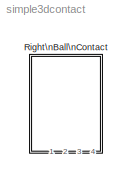
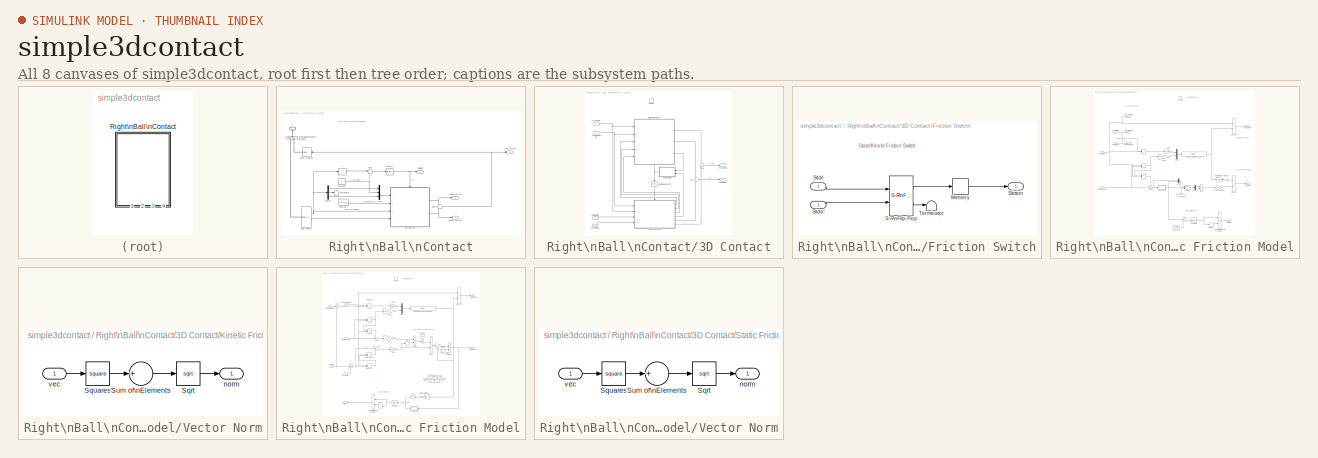
[diagram: thumbnail index - all 8 canvases of the model, root first then tree order]
MODEL simple3dcontact
KIND model
BLOCK [SubSystem] Right\nBall\nContact
  Ports = [0, 4, 0, 0, 0, 1]
  RequestExecContextInheritance = off
  SID = 1
BLOCK [SubSystem] Right\nBall\nContact/3D Contact
  Ports = [4, 2, 1]
  RequestExecContextInheritance = off
  SID = 2
BLOCK [EnablePort] Right\nBall\nContact/3D Contact/Contact!
  Ports = []
  SID = 7
  StatesWhenEnabling = reset
BLOCK [Outport] Right\nBall\nContact/3D Contact/FnVec [N N N]
  AttributesFormatString = when disabled: %<OutputWhenDisabled>
  IconDisplay = Port number
  InitialOutput = [0 0 0]
  OutputWhenDisabled = reset
  SID = 116
BLOCK [SubSystem] Right\nBall\nContact/3D Contact/Friction Switch
  Ports = [2, 1]
  RequestExecContextInheritance = off
  SID = 8
BLOCK [Memory] Right\nBall\nContact/3D Contact/Friction Switch/Memory
  SID = 11
BLOCK [Reference] Right\nBall\nContact/3D Contact/Friction Switch/S-R\nFlip-Flop  REF=simulink_extras/Flip Flops/S-R\nFlip-Flop
  Ports = [2, 2]
  SID = 12
  SourceBlock = simulink_extras/Flip Flops/S-R\nFlip-Flop
  SourceType = SRFlipFlop
  initial_condition = 0
BLOCK [Inport] Right\nBall\nContact/3D Contact/Friction Switch/Slide!
  IconDisplay = Port number
  SID = 9
BLOCK [Inport] Right\nBall\nContact/3D Contact/Friction Switch/Stick!
  IconDisplay = Port number
  Port = 2
  SID = 10
BLOCK [Outport] Right\nBall\nContact/3D Contact/Friction Switch/Stiction
  IconDisplay = Port number
  SID = 14
BLOCK [Terminator] Right\nBall\nContact/3D Contact/Friction Switch/Terminator
  SID = 13
BLOCK [Outport] Right\nBall\nContact/3D Contact/FtVec [N N N]
  AttributesFormatString = when disabled: %<OutputWhenDisabled>
  IconDisplay = Port number
  InitialOutput = [0 0 0]
  OutputWhenDisabled = reset
  Port = 2
  SID = 117
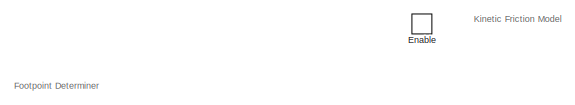
[diagram: Right\nBall\nContact/3D Contact/Kinetic Friction Model - part 1/2, top center region]
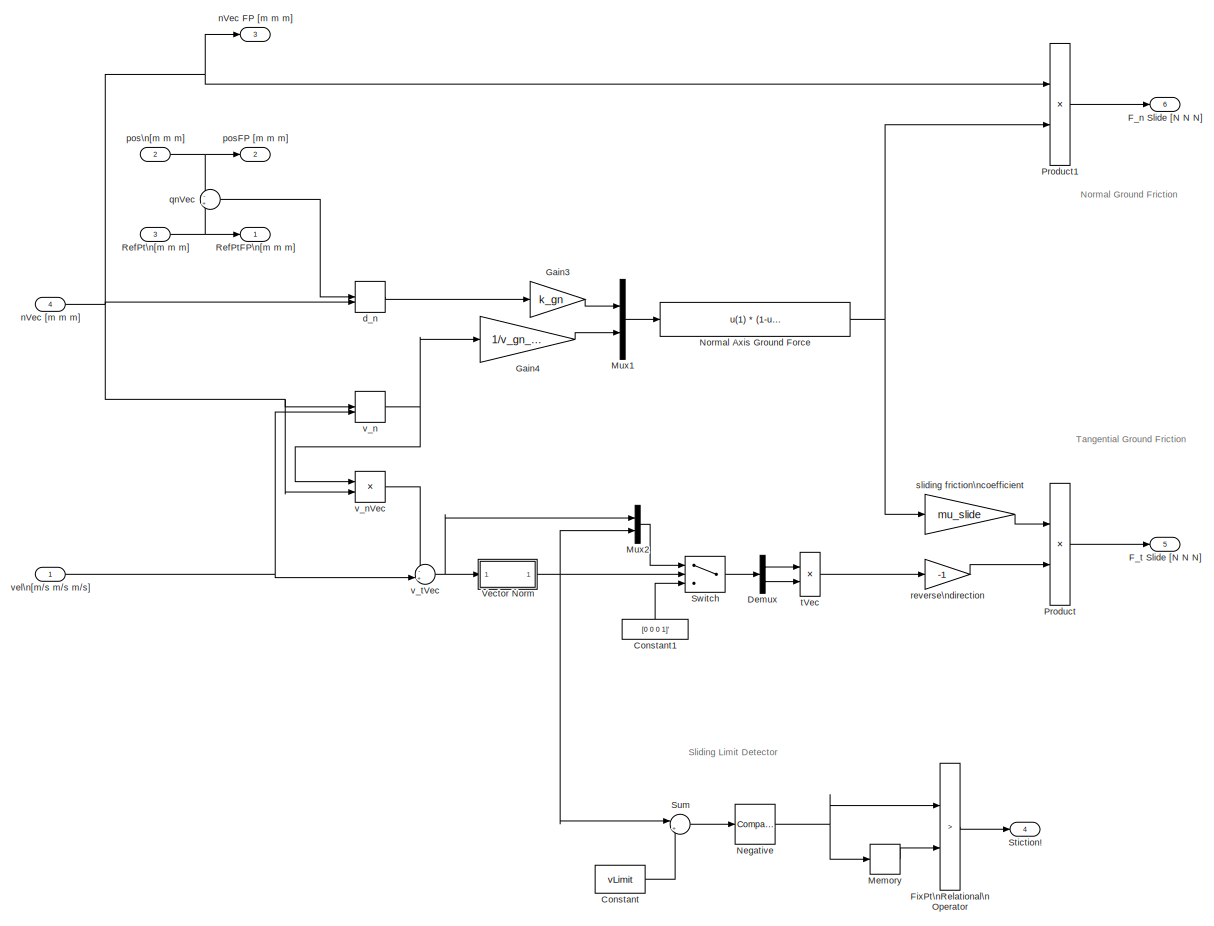
[diagram: Right\nBall\nContact/3D Contact/Kinetic Friction Model - part 2/2, most of the canvas]
BLOCK [SubSystem] Right\nBall\nContact/3D Contact/Kinetic Friction Model
  Ports = [4, 6, 1]
  RequestExecContextInheritance = off
  SID = 16
BLOCK [Constant] Right\nBall\nContact/3D Contact/Kinetic Friction Model/Constant
  SID = 22
  Value = vLimit
BLOCK [Constant] Right\nBall\nContact/3D Contact/Kinetic Friction Model/Constant1
  SID = 23
  Value = [0 0 0 1]'
BLOCK [Demux] Right\nBall\nContact/3D Contact/Kinetic Friction Model/Demux
  DisplayOption = bar
  Outputs = [3 1]
  Ports = [1, 2]
  SID = 24
BLOCK [EnablePort] Right\nBall\nContact/3D Contact/Kinetic Friction Model/Enable
  Ports = []
  SID = 21
  StatesWhenEnabling = reset
  ZeroCross = off
BLOCK [Outport] Right\nBall\nContact/3D Contact/Kinetic Friction Model/F_n Slide [N N N]
  AttributesFormatString = initial = '%<InitialOutput>'\\nwhen disabled = '%<OutputWhenDisabled>'
  IconDisplay = Port number
  InitialOutput = [0 0 0]
  OutputWhenDisabled = reset
  Port = 6
  SID = 56
BLOCK [Outport] Right\nBall\nContact/3D Contact/Kinetic Friction Model/F_t Slide [N N N]
  AttributesFormatString = initial = '%<InitialOutput>'\\nwhen disabled = '%<OutputWhenDisabled>'
  IconDisplay = Port number
  InitialOutput = [0 0 0]
  OutputWhenDisabled = reset
  Port = 5
  SID = 55
BLOCK [RelationalOperator] Right\nBall\nContact/3D Contact/Kinetic Friction Model/FixPt\nRelational\nOperator
  InputSameDT = off
  Operator = >
  OutDataTypeStr = boolean
  Ports = [2, 1]
  SID = 25
  ZeroCross = off
BLOCK [Gain] Right\nBall\nContact/3D Contact/Kinetic Friction Model/Gain3
  Gain = k_gn
  OutDataTypeStr = Inherit: Inherit via internal rule
  ParamDataTypeStr = Inherit: Inherit via internal rule
  SID = 26
  SaturateOnIntegerOverflow = off
BLOCK [Gain] Right\nBall\nContact/3D Contact/Kinetic Friction Model/Gain4
  Gain = 1/v_gn_max
  OutDataTypeStr = Inherit: Inherit via internal rule
  ParamDataTypeStr = Inherit: Inherit via internal rule
  SID = 27
  SaturateOnIntegerOverflow = off
BLOCK [Memory] Right\nBall\nContact/3D Contact/Kinetic Friction Model/Memory
  SID = 28
BLOCK [Mux] Right\nBall\nContact/3D Contact/Kinetic Friction Model/Mux1
  DisplayOption = bar
  Inputs = 2
  Ports = [2, 1]
  SID = 29
BLOCK [Mux] Right\nBall\nContact/3D Contact/Kinetic Friction Model/Mux2
  DisplayOption = bar
  Inputs = 2
  Ports = [2, 1]
  SID = 30
BLOCK [Reference] Right\nBall\nContact/3D Contact/Kinetic Friction Model/Negative  REF=simulink/Logic and Bit\nOperations/Compare\nTo Zero
  OutDataTypeStr = boolean
  Ports = [1, 1]
  SID = 31
  SourceBlock = simulink/Logic and Bit\nOperations/Compare\nTo Zero
  SourceType = Compare To Zero
  ZeroCross = on
  relop = <
BLOCK [Fcn] Right\nBall\nContact/3D Contact/Kinetic Friction Model/Normal Axis Ground Force
  Expr = u(1)  *  (1-u(2)) * (u(2)<1)
  SID = 32
BLOCK [Product] Right\nBall\nContact/3D Contact/Kinetic Friction Model/Product
  InputSameDT = off
  OutDataTypeStr = Inherit: Inherit via internal rule
  Ports = [2, 1]
  SID = 33
  SaturateOnIntegerOverflow = off
BLOCK [Product] Right\nBall\nContact/3D Contact/Kinetic Friction Model/Product1
  InputSameDT = off
  OutDataTypeStr = Inherit: Inherit via internal rule
  Ports = [2, 1]
  SID = 34
  SaturateOnIntegerOverflow = off
BLOCK [Outport] Right\nBall\nContact/3D Contact/Kinetic Friction Model/RefPtFP\n[m m m]
  AttributesFormatString = initial = '%<InitialOutput>'\\nwhen disabled = '%<OutputWhenDisabled>'
  IconDisplay = Port number
  InitialOutput = [0 0 0]
  SID = 51
BLOCK [Inport] Right\nBall\nContact/3D Contact/Kinetic Friction Model/RefPt\n[m m m]
  IconDisplay = Port number
  Port = 3
  SID = 19
BLOCK [Outport] Right\nBall\nContact/3D Contact/Kinetic Friction Model/Stiction!
  AttributesFormatString = initial = '%<InitialOutput>'\\nwhen disabled = '%<OutputWhenDisabled>'
  IconDisplay = Port number
  InitialOutput = 0
  OutputWhenDisabled = reset
  Port = 4
  SID = 54
BLOCK [Sum] Right\nBall\nContact/3D Contact/Kinetic Friction Model/Sum
  IconShape = round
  InputSameDT = off
  Inputs = |+-
  OutDataTypeStr = Inherit: Inherit via internal rule
  Ports = [2, 1]
  SID = 35
  SaturateOnIntegerOverflow = off
BLOCK [Switch] Right\nBall\nContact/3D Contact/Kinetic Friction Model/Switch
  AttributesFormatString = >%<Threshold>?
  Criteria = u2 > Threshold
  InputSameDT = off
  SID = 36
  SaturateOnIntegerOverflow = off
  Threshold = 0.9*vLimit
BLOCK [SubSystem] Right\nBall\nContact/3D Contact/Kinetic Friction Model/Vector Norm
  Ports = [1, 1]
  RequestExecContextInheritance = off
  SID = 37
BLOCK [Sqrt] Right\nBall\nContact/3D Contact/Kinetic Friction Model/Vector Norm/Sqrt
  AlgorithmType = Newton-Raphson
  OutputSignalType = real
  SID = 39
BLOCK [Math] Right\nBall\nContact/3D Contact/Kinetic Friction Model/Vector Norm/Squares
  Operator = square
  OutputSignalType = real
  Ports = [1, 1]
  SID = 40
BLOCK [Sum] Right\nBall\nContact/3D Contact/Kinetic Friction Model/Vector Norm/Sum of\nElements
  IconShape = round
  InputSameDT = off
  Inputs = +
  OutDataTypeStr = Inherit: Inherit via internal rule
  Ports = [1, 1]
  SID = 41
  SaturateOnIntegerOverflow = off
BLOCK [Outport] Right\nBall\nContact/3D Contact/Kinetic Friction Model/Vector Norm/norm
  IconDisplay = Port number
  SID = 42
BLOCK [Inport] Right\nBall\nContact/3D Contact/Kinetic Friction Model/Vector Norm/vec
  IconDisplay = Port number
  SID = 38
BLOCK [DotProduct] Right\nBall\nContact/3D Contact/Kinetic Friction Model/d_n
  OutDataTypeStr = Inherit: Inherit via internal rule
  SID = 43
BLOCK [Outport] Right\nBall\nContact/3D Contact/Kinetic Friction Model/nVec FP [m m m]
  AttributesFormatString = initial = '%<InitialOutput>'\\nwhen disabled = '%<OutputWhenDisabled>'
  IconDisplay = Port number
  InitialOutput = 0
  Port = 3
  SID = 53
BLOCK [Inport] Right\nBall\nContact/3D Contact/Kinetic Friction Model/nVec [m m m]
  IconDisplay = Port number
  Port = 4
  SID = 20
BLOCK [Outport] Right\nBall\nContact/3D Contact/Kinetic Friction Model/posFP [m m m]
  AttributesFormatString = initial = '%<InitialOutput>'\\nwhen disabled = '%<OutputWhenDisabled>'
  IconDisplay = Port number
  InitialOutput = [0 0 0]
  Port = 2
  SID = 52
BLOCK [Inport] Right\nBall\nContact/3D Contact/Kinetic Friction Model/pos\n[m m m]
  IconDisplay = Port number
  Port = 2
  SID = 18
BLOCK [Sum] Right\nBall\nContact/3D Contact/Kinetic Friction Model/qnVec
  IconShape = round
  InputSameDT = off
  Inputs = -+
  OutDataTypeStr = Inherit: Inherit via internal rule
  Ports = [2, 1]
  SID = 44
  SaturateOnIntegerOverflow = off
BLOCK [Gain] Right\nBall\nContact/3D Contact/Kinetic Friction Model/reverse\ndirection
  Gain = -1
  OutDataTypeStr = Inherit: Inherit via internal rule
  ParamDataTypeStr = Inherit: Inherit via internal rule
  SID = 45
  SaturateOnIntegerOverflow = off
BLOCK [Gain] Right\nBall\nContact/3D Contact/Kinetic Friction Model/sliding friction\ncoefficient
  Gain = mu_slide
  OutDataTypeStr = Inherit: Inherit via internal rule
  ParamDataTypeStr = Inherit: Inherit via internal rule
  SID = 46
  SaturateOnIntegerOverflow = off
BLOCK [Product] Right\nBall\nContact/3D Contact/Kinetic Friction Model/tVec
  InputSameDT = off
  Inputs = */
  OutDataTypeStr = Inherit: Inherit via internal rule
  Ports = [2, 1]
  SID = 47
  SaturateOnIntegerOverflow = off
BLOCK [DotProduct] Right\nBall\nContact/3D Contact/Kinetic Friction Model/v_n
  OutDataTypeStr = Inherit: Inherit via internal rule
  SID = 48
BLOCK [Product] Right\nBall\nContact/3D Contact/Kinetic Friction Model/v_nVec
  InputSameDT = off
  OutDataTypeStr = Inherit: Inherit via internal rule
  Ports = [2, 1]
  SID = 49
  SaturateOnIntegerOverflow = off
BLOCK [Sum] Right\nBall\nContact/3D Contact/Kinetic Friction Model/v_tVec
  IconShape = round
  InputSameDT = off
  Inputs = -+|
  OutDataTypeStr = Inherit: Inherit via internal rule
  Ports = [2, 1]
  SID = 50
  SaturateOnIntegerOverflow = off
BLOCK [Inport] Right\nBall\nContact/3D Contact/Kinetic Friction Model/vel\n[m//s m//s m//s]
  IconDisplay = Port number
  SID = 17
BLOCK [Logic] Right\nBall\nContact/3D Contact/Logical\nOperator
  AllPortsSameDT = off
  Operator = NOT
  OutDataTypeStr = boolean
  Ports = [1, 1]
  SID = 62
BLOCK [Inport] Right\nBall\nContact/3D Contact/RefPt\n[m m m]
  IconDisplay = Port number
  SID = 3
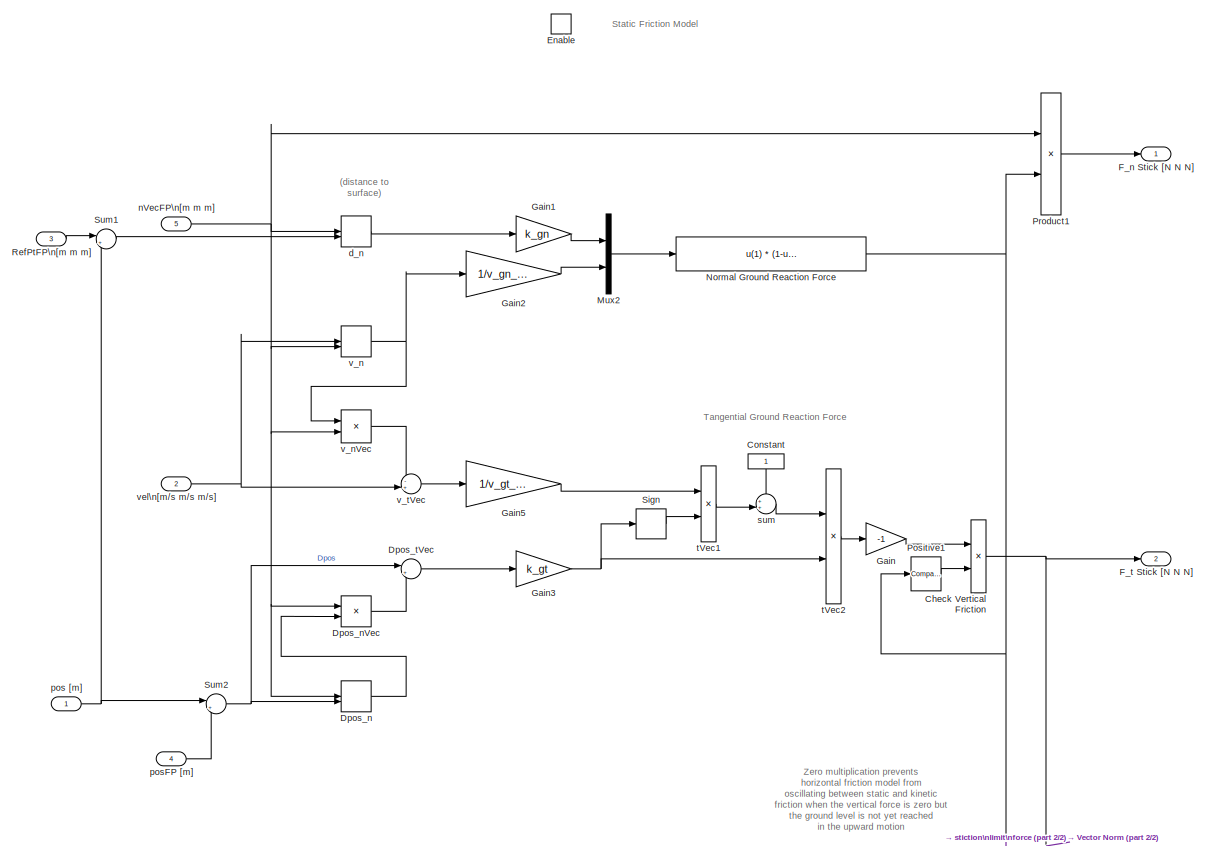
[diagram: Right\nBall\nContact/3D Contact/Static Friction Model - part 1/2, most of the canvas]
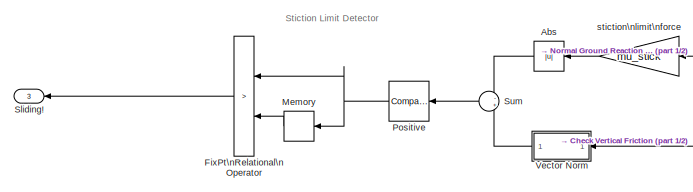
[diagram: Right\nBall\nContact/3D Contact/Static Friction Model - part 2/2, bottom center region]
BLOCK [SubSystem] Right\nBall\nContact/3D Contact/Static Friction Model
  Ports = [5, 3, 1]
  RequestExecContextInheritance = off
  SID = 63
BLOCK [Abs] Right\nBall\nContact/3D Contact/Static Friction Model/Abs
  SID = 70
  SaturateOnIntegerOverflow = off
BLOCK [Product] Right\nBall\nContact/3D Contact/Static Friction Model/Check Vertical Friction
  InputSameDT = off
  OutDataTypeStr = Inherit: Inherit via internal rule
  Ports = [2, 1]
  SID = 71
  SaturateOnIntegerOverflow = off
BLOCK [Constant] Right\nBall\nContact/3D Contact/Static Friction Model/Constant
  SID = 72
BLOCK [DotProduct] Right\nBall\nContact/3D Contact/Static Friction Model/Dpos_n
  OutDataTypeStr = Inherit: Inherit via internal rule
  SID = 73
BLOCK [Product] Right\nBall\nContact/3D Contact/Static Friction Model/Dpos_nVec
  InputSameDT = off
  OutDataTypeStr = Inherit: Inherit via internal rule
  Ports = [2, 1]
  SID = 74
  SaturateOnIntegerOverflow = off
BLOCK [Sum] Right\nBall\nContact/3D Contact/Static Friction Model/Dpos_tVec
  IconShape = round
  InputSameDT = off
  Inputs = |+-
  OutDataTypeStr = Inherit: Inherit via internal rule
  Ports = [2, 1]
  SID = 75
  SaturateOnIntegerOverflow = off
BLOCK [EnablePort] Right\nBall\nContact/3D Contact/Static Friction Model/Enable
  Ports = []
  SID = 69
  StatesWhenEnabling = reset
  ZeroCross = off
BLOCK [Outport] Right\nBall\nContact/3D Contact/Static Friction Model/F_n Stick [N N N]
  AttributesFormatString = initial = '%<InitialOutput>'\\nwhen disabled = '%<OutputWhenDisabled>'
  IconDisplay = Port number
  InitialOutput = [0 0 0]
  OutputWhenDisabled = reset
  SID = 106
BLOCK [Outport] Right\nBall\nContact/3D Contact/Static Friction Model/F_t Stick [N N N]
  AttributesFormatString = when disabled: %<OutputWhenDisabled>\\ninitial: %<InitialOutput>
  IconDisplay = Port number
  InitialOutput = [0 0 0]
  OutputWhenDisabled = reset
  Port = 2
  SID = 107
BLOCK [RelationalOperator] Right\nBall\nContact/3D Contact/Static Friction Model/FixPt\nRelational\nOperator
  InputSameDT = off
  Operator = >
  OutDataTypeStr = boolean
  Ports = [2, 1]
  SID = 76
  ZeroCross = off
BLOCK [Gain] Right\nBall\nContact/3D Contact/Static Friction Model/Gain
  Gain = -1
  OutDataTypeStr = Inherit: Inherit via internal rule
  ParamDataTypeStr = Inherit: Inherit via internal rule
  SID = 77
  SaturateOnIntegerOverflow = off
BLOCK [Gain] Right\nBall\nContact/3D Contact/Static Friction Model/Gain1
  Gain = k_gn
  OutDataTypeStr = Inherit: Inherit via internal rule
  ParamDataTypeStr = Inherit: Inherit via internal rule
  SID = 78
  SaturateOnIntegerOverflow = off
BLOCK [Gain] Right\nBall\nContact/3D Contact/Static Friction Model/Gain2
  Gain = 1/v_gn_max
  OutDataTypeStr = Inherit: Inherit via internal rule
  ParamDataTypeStr = Inherit: Inherit via internal rule
  SID = 79
  SaturateOnIntegerOverflow = off
BLOCK [Gain] Right\nBall\nContact/3D Contact/Static Friction Model/Gain3
  Gain = k_gt
  OutDataTypeStr = Inherit: Inherit via internal rule
  ParamDataTypeStr = Inherit: Inherit via internal rule
  SID = 80
  SaturateOnIntegerOverflow = off
BLOCK [Gain] Right\nBall\nContact/3D Contact/Static Friction Model/Gain5
  Gain = 1/v_gt_max
  OutDataTypeStr = Inherit: Inherit via internal rule
  ParamDataTypeStr = Inherit: Inherit via internal rule
  SID = 81
  SaturateOnIntegerOverflow = off
BLOCK [Memory] Right\nBall\nContact/3D Contact/Static Friction Model/Memory
  SID = 82
BLOCK [Mux] Right\nBall\nContact/3D Contact/Static Friction Model/Mux2
  DisplayOption = bar
  Inputs = 2
  Ports = [2, 1]
  SID = 83
BLOCK [Fcn] Right\nBall\nContact/3D Contact/Static Friction Model/Normal Ground Reaction Force
  Expr = u(1)  *  (1-u(2)) * (u(2)<1)
  SID = 84
BLOCK [Reference] Right\nBall\nContact/3D Contact/Static Friction Model/Positive  REF=simulink/Logic and Bit\nOperations/Compare\nTo Zero
  OutDataTypeStr = boolean
  Ports = [1, 1]
  SID = 85
  SourceBlock = simulink/Logic and Bit\nOperations/Compare\nTo Zero
  SourceType = Compare To Zero
  ZeroCross = on
  relop = >
BLOCK [Reference] Right\nBall\nContact/3D Contact/Static Friction Model/Positive1  REF=simulink/Logic and Bit\nOperations/Compare\nTo Zero
  OutDataTypeStr = boolean
  Ports = [1, 1]
  SID = 86
  SourceBlock = simulink/Logic and Bit\nOperations/Compare\nTo Zero
  SourceType = Compare To Zero
  ZeroCross = on
  relop = >
BLOCK [Product] Right\nBall\nContact/3D Contact/Static Friction Model/Product1
  InputSameDT = off
  OutDataTypeStr = Inherit: Inherit via internal rule
  Ports = [2, 1]
  SID = 87
  SaturateOnIntegerOverflow = off
BLOCK [Inport] Right\nBall\nContact/3D Contact/Static Friction Model/RefPtFP\n[m m m]
  IconDisplay = Port number
  Port = 3
  SID = 66
BLOCK [Signum] Right\nBall\nContact/3D Contact/Static Friction Model/Sign
  SID = 88
  ZeroCross = off
BLOCK [Outport] Right\nBall\nContact/3D Contact/Static Friction Model/Sliding!
  AttributesFormatString = when disabled: %<OutputWhenDisabled>\\ninitial: %<InitialOutput>
  IconDisplay = Port number
  InitialOutput = 0
  OutputWhenDisabled = reset
  Port = 3
  SID = 108
BLOCK [Sum] Right\nBall\nContact/3D Contact/Static Friction Model/Sum
  IconShape = round
  InputSameDT = off
  Inputs = -+
  OutDataTypeStr = Inherit: Inherit via internal rule
  Ports = [2, 1]
  SID = 89
  SaturateOnIntegerOverflow = off
BLOCK [Sum] Right\nBall\nContact/3D Contact/Static Friction Model/Sum1
  IconShape = round
  InputSameDT = off
  Inputs = |+-
  OutDataTypeStr = Inherit: Inherit via internal rule
  Ports = [2, 1]
  SID = 90
  SaturateOnIntegerOverflow = off
BLOCK [Sum] Right\nBall\nContact/3D Contact/Static Friction Model/Sum2
  IconShape = round
  InputSameDT = off
  Inputs = |+-
  OutDataTypeStr = Inherit: Inherit via internal rule
  Ports = [2, 1]
  SID = 91
  SaturateOnIntegerOverflow = off
BLOCK [SubSystem] Right\nBall\nContact/3D Contact/Static Friction Model/Vector Norm
  Ports = [1, 1]
  RequestExecContextInheritance = off
  SID = 92
BLOCK [Sqrt] Right\nBall\nContact/3D Contact/Static Friction Model/Vector Norm/Sqrt
  AlgorithmType = Newton-Raphson
  OutputSignalType = real
  SID = 94
BLOCK [Math] Right\nBall\nContact/3D Contact/Static Friction Model/Vector Norm/Squares
  Operator = square
  OutputSignalType = real
  Ports = [1, 1]
  SID = 95
BLOCK [Sum] Right\nBall\nContact/3D Contact/Static Friction Model/Vector Norm/Sum of\nElements
  IconShape = round
  InputSameDT = off
  Inputs = +
  OutDataTypeStr = Inherit: Inherit via internal rule
  Ports = [1, 1]
  SID = 96
  SaturateOnIntegerOverflow = off
BLOCK [Outport] Right\nBall\nContact/3D Contact/Static Friction Model/Vector Norm/norm
  IconDisplay = Port number
  SID = 97
BLOCK [Inport] Right\nBall\nContact/3D Contact/Static Friction Model/Vector Norm/vec
  IconDisplay = Port number
  SID = 93
BLOCK [DotProduct] Right\nBall\nContact/3D Contact/Static Friction Model/d_n
  OutDataTypeStr = Inherit: Inherit via internal rule
  SID = 98
BLOCK [Inport] Right\nBall\nContact/3D Contact/Static Friction Model/nVecFP\n[m m m]
  IconDisplay = Port number
  Port = 5
  SID = 68
BLOCK [Inport] Right\nBall\nContact/3D Contact/Static Friction Model/pos [m]
  IconDisplay = Port number
  SID = 64
BLOCK [Inport] Right\nBall\nContact/3D Contact/Static Friction Model/posFP [m]
  IconDisplay = Port number
  Port = 4
  SID = 67
BLOCK [Gain] Right\nBall\nContact/3D Contact/Static Friction Model/stiction\nlimit\nforce
  Gain = mu_stick
  OutDataTypeStr = Inherit: Inherit via internal rule
  ParamDataTypeStr = Inherit: Inherit via internal rule
  SID = 99
  SaturateOnIntegerOverflow = off
BLOCK [Sum] Right\nBall\nContact/3D Contact/Static Friction Model/sum
  IconShape = round
  InputSameDT = off
  Inputs = ++|
  OutDataTypeStr = Inherit: Inherit via internal rule
  Ports = [2, 1]
  SID = 100
  SaturateOnIntegerOverflow = off
BLOCK [Product] Right\nBall\nContact/3D Contact/Static Friction Model/tVec1
  InputSameDT = off
  Inputs = **
  OutDataTypeStr = Inherit: Inherit via internal rule
  Ports = [2, 1]
  SID = 101
  SaturateOnIntegerOverflow = off
BLOCK [Product] Right\nBall\nContact/3D Contact/Static Friction Model/tVec2
  InputSameDT = off
  Inputs = **
  OutDataTypeStr = Inherit: Inherit via internal rule
  Ports = [2, 1]
  SID = 102
  SaturateOnIntegerOverflow = off
BLOCK [DotProduct] Right\nBall\nContact/3D Contact/Static Friction Model/v_n
  OutDataTypeStr = Inherit: Inherit via internal rule
  SID = 103
BLOCK [Product] Right\nBall\nContact/3D Contact/Static Friction Model/v_nVec
  InputSameDT = off
  OutDataTypeStr = Inherit: Inherit via internal rule
  Ports = [2, 1]
  SID = 104
  SaturateOnIntegerOverflow = off
BLOCK [Sum] Right\nBall\nContact/3D Contact/Static Friction Model/v_tVec
  IconShape = round
  InputSameDT = off
  Inputs = -+|
  OutDataTypeStr = Inherit: Inherit via internal rule
  Ports = [2, 1]
  SID = 105
  SaturateOnIntegerOverflow = off
BLOCK [Inport] Right\nBall\nContact/3D Contact/Static Friction Model/vel\n[m//s m//s m//s]
  IconDisplay = Port number
  Port = 2
  SID = 65
BLOCK [Sum] Right\nBall\nContact/3D Contact/Sum
  IconShape = round
  InputSameDT = off
  OutDataTypeStr = Inherit: Inherit via internal rule
  Ports = [2, 1]
  SID = 114
  SaturateOnIntegerOverflow = off
BLOCK [Sum] Right\nBall\nContact/3D Contact/Sum1
  IconShape = round
  InputSameDT = off
  OutDataTypeStr = Inherit: Inherit via internal rule
  Ports = [2, 1]
  SID = 115
  SaturateOnIntegerOverflow = off
BLOCK [Inport] Right\nBall\nContact/3D Contact/nVec\n[m m m]
  IconDisplay = Port number
  Port = 2
  SID = 4
BLOCK [Inport] Right\nBall\nContact/3D Contact/pVec\n[m m m]
  IconDisplay = Port number
  Port = 3
  SID = 5
BLOCK [Inport] Right\nBall\nContact/3D Contact/vVec\n[m//s m//s m//s]
  IconDisplay = Port number
  Port = 4
  SID = 6
BLOCK [Reference] Right\nBall\nContact/Body Actuator  REF=mblibv1/Sensors & \nActuators/Body Actuator
  AccelerationUnits = m/s^2
  ActiveIO = off
  ActuationStyle = Force
  Angle = off
  AngleUnits = deg
  ArcAccelerationUnits = deg/s^2
  ArcVelocityUnits = deg/s
  ClassName = BodyActuatorForceTorque
  CoordPosition = on
  CoordPositionUnits = m
  DialogClass = MechanicalActuatorBlock
  Force = on
  ForceUnits = N
  PhysicalDomain = Mechanical
  PortType = blob
  Ports = [1, 0, 0, 0, 0, 0, 1]
  ReferenceFrame = Absolute (World)
  SID = 118
  SourceBlock = mblibv1/Sensors & \nActuators/Body Actuator
  SourceType = Body Actuator
  Torque = off
  TorqueUnits = N*m
  UpdateFromCAD = off
  VelocityUnits = m/s
  Width = 3
BLOCK [Reference] Right\nBall\nContact/Body Sensor  REF=mblibv1/Sensors & \nActuators/Body Sensor
  Acceleration = off
  AccelerationUnits = m/s^2
  ActiveIO = off
  Angle = on
  AngleUnits = deg
  ArcAcceleration = off
  ArcAccelerationUnits = deg/s^2
  ArcVelocity = off
  ArcVelocityUnits = deg/s
  ClassName = BodySensor
  CoordPosition = on
  CoordPositionUnits = m
  DialogClass = MechanicalSensorBlock
  Muxed = off
  OutputVector = [ 3 3 ]
  PhysicalDomain = Mechanical
  PortType = blob
  Ports = [0, 2, 0, 0, 0, 1]
  Pose = off
  Quaternion = on
  QuaternionDDT = off
  QuaternionDT = off
  QuaternionUnits = off
  ReferenceFrame = Absolute (World)
  SID = 119
  SourceBlock = mblibv1/Sensors & \nActuators/Body Sensor
  SourceType = Body Sensor
  UpdateFromCAD = off
  Velocity = on
  VelocityUnits = m/s
  Width = 6
BLOCK [Constant] Right\nBall\nContact/Constant
  SID = 120
  Value = 0
BLOCK [Constant] Right\nBall\nContact/Constant1
  SID = 121
  Value = [0 1 0]
BLOCK [Demux] Right\nBall\nContact/Demux
  DisplayOption = bar
  Outputs = 3
  Ports = [1, 3]
  SID = 122
BLOCK [PMIOPort] Right\nBall\nContact/F
  Port = 1
  SID = 130
  Side = Left
BLOCK [Outport] Right\nBall\nContact/GRF [N N N]
  IconDisplay = Port number
  Port = 2
  SID = 132
BLOCK [Outport] Right\nBall\nContact/GRFn [N N N]
  IconDisplay = Port number
  Port = 4
  SID = 134
BLOCK [Outport] Right\nBall\nContact/GRFt [N N N]
  IconDisplay = Port number
  Port = 3
  SID = 133
BLOCK [Reference] Right\nBall\nContact/Mechanical\nBranching\nBar  REF=mblibv1/Utilities/Mechanical\nBranching\nBar
  ClassName = BranchingBar
  DialogClass = MechanicalBranchingBarBlock
  LConnTagsString = _newl0
  NumSAPorts = 2
  Ports = [0, 0, 0, 0, 0, 1, 2]
  RConnTagsString = SA0|SA1
  SID = 123
  SourceBlock = mblibv1/Utilities/Mechanical\nBranching\nBar
  SourceType = Mechanical Branching Bar
  UpdateFromCAD = off
BLOCK [Mux] Right\nBall\nContact/Mux
  DisplayOption = bar
  Inputs = 3
  Ports = [3, 1]
  SID = 124
BLOCK [Outport] Right\nBall\nContact/RBallCnt
  IconDisplay = Port number
  SID = 131
BLOCK [Sum] Right\nBall\nContact/Sum
  IconShape = round
  InputSameDT = off
  Inputs = |+-
  OutDataTypeStr = Inherit: Inherit via internal rule
  Ports = [2, 1]
  SID = 125
  SaturateOnIntegerOverflow = off
BLOCK [Sum] Right\nBall\nContact/Sum1
  IconShape = round
  InputSameDT = off
  OutDataTypeStr = Inherit: Inherit via internal rule
  Ports = [2, 1]
  SID = 126
  SaturateOnIntegerOverflow = off
BLOCK [Terminator] Right\nBall\nContact/Terminator
  SID = 127
BLOCK [Reference] Right\nBall\nContact/contact?  REF=simulink/Logic and Bit\nOperations/Compare\nTo Zero
  OutDataTypeStr = boolean
  Ports = [1, 1]
  SID = 128
  SourceBlock = simulink/Logic and Bit\nOperations/Compare\nTo Zero
  SourceType = Compare To Zero
  ZeroCross = on
  relop = <=
BLOCK [Selector] Right\nBall\nContact/y
  Indices = 2
  InputPortWidth = 3
  Ports = [1, 1]
  SID = 129
ANNOTATION Right\nBall\nContact: 3D Ground Interaction Model
ANNOTATION Right\nBall\nContact/3D Contact/Friction Switch: Static/Kinetic Friction Switch
ANNOTATION Right\nBall\nContact/3D Contact/Kinetic Friction Model: Footpoint Determiner
ANNOTATION Right\nBall\nContact/3D Contact/Kinetic Friction Model: Kinetic Friction Model
ANNOTATION Right\nBall\nContact/3D Contact/Kinetic Friction Model: Normal Ground Friction
ANNOTATION Right\nBall\nContact/3D Contact/Kinetic Friction Model: Sliding Limit Detector
ANNOTATION Right\nBall\nContact/3D Contact/Kinetic Friction Model: Tangential Ground Friction
ANNOTATION Right\nBall\nContact/3D Contact/Static Friction Model: (distance to\nsurface)
ANNOTATION Right\nBall\nContact/3D Contact/Static Friction Model: Static Friction Model
ANNOTATION Right\nBall\nContact/3D Contact/Static Friction Model: Stiction Limit Detector
ANNOTATION Right\nBall\nContact/3D Contact/Static Friction Model: Tangential Ground Reaction Force
ANNOTATION Right\nBall\nContact/3D Contact/Static Friction Model: Zero multiplication prevents\nhorizontal friction model from\noscillating between static and kinetic\nfriction when the vertical force is zero but \nthe ground level is not yet reached \nin the upward motion
LINE Right\nBall\nContact/3D Contact/Friction Switch/Memory:1 -> Right\nBall\nContact/3D Contact/Friction Switch/Stiction:1
LINE Right\nBall\nContact/3D Contact/Friction Switch/S-R\nFlip-Flop:1 -> Right\nBall\nContact/3D Contact/Friction Switch/Memory:1
LINE Right\nBall\nContact/3D Contact/Friction Switch/S-R\nFlip-Flop:2 -> Right\nBall\nContact/3D Contact/Friction Switch/Terminator:1
LINE Right\nBall\nContact/3D Contact/Friction Switch/Slide!:1 -> Right\nBall\nContact/3D Contact/Friction Switch/S-R\nFlip-Flop:2
LINE Right\nBall\nContact/3D Contact/Friction Switch/Stick!:1 -> Right\nBall\nContact/3D Contact/Friction Switch/S-R\nFlip-Flop:1
NET Right\nBall\nContact/3D Contact/Friction Switch:1 -> Right\nBall\nContact/3D Contact/Logical\nOperator:1, Right\nBall\nContact/3D Contact/Static Friction Model:enable
LINE Right\nBall\nContact/3D Contact/Kinetic Friction Model/Constant1:1 -> Right\nBall\nContact/3D Contact/Kinetic Friction Model/Switch:3
LINE Right\nBall\nContact/3D Contact/Kinetic Friction Model/Constant:1 -> Right\nBall\nContact/3D Contact/Kinetic Friction Model/Sum:2
LINE Right\nBall\nContact/3D Contact/Kinetic Friction Model/Demux:1 -> Right\nBall\nContact/3D Contact/Kinetic Friction Model/tVec:1
LINE Right\nBall\nContact/3D Contact/Kinetic Friction Model/Demux:2 -> Right\nBall\nContact/3D Contact/Kinetic Friction Model/tVec:2
LINE Right\nBall\nContact/3D Contact/Kinetic Friction Model/FixPt\nRelational\nOperator:1 -> Right\nBall\nContact/3D Contact/Kinetic Friction Model/Stiction!:1
LINE Right\nBall\nContact/3D Contact/Kinetic Friction Model/Gain3:1 -> Right\nBall\nContact/3D Contact/Kinetic Friction Model/Mux1:1
LINE Right\nBall\nContact/3D Contact/Kinetic Friction Model/Gain4:1 -> Right\nBall\nContact/3D Contact/Kinetic Friction Model/Mux1:2
LINE Right\nBall\nContact/3D Contact/Kinetic Friction Model/Memory:1 -> Right\nBall\nContact/3D Contact/Kinetic Friction Model/FixPt\nRelational\nOperator:2
LINE Right\nBall\nContact/3D Contact/Kinetic Friction Model/Mux1:1 -> Right\nBall\nContact/3D Contact/Kinetic Friction Model/Normal Axis Ground Force:1
LINE Right\nBall\nContact/3D Contact/Kinetic Friction Model/Mux2:1 -> Right\nBall\nContact/3D Contact/Kinetic Friction Model/Switch:1
NET Right\nBall\nContact/3D Contact/Kinetic Friction Model/Negative:1 -> Right\nBall\nContact/3D Contact/Kinetic Friction Model/FixPt\nRelational\nOperator:1, Right\nBall\nContact/3D Contact/Kinetic Friction Model/Memory:1
NET Right\nBall\nContact/3D Contact/Kinetic Friction Model/Normal Axis Ground Force:1 -> Right\nBall\nContact/3D Contact/Kinetic Friction Model/Product1:2, Right\nBall\nContact/3D Contact/Kinetic Friction Model/sliding friction\ncoefficient:1
LINE Right\nBall\nContact/3D Contact/Kinetic Friction Model/Product1:1 -> Right\nBall\nContact/3D Contact/Kinetic Friction Model/F_n Slide [N N N]:1
LINE Right\nBall\nContact/3D Contact/Kinetic Friction Model/Product:1 -> Right\nBall\nContact/3D Contact/Kinetic Friction Model/F_t Slide [N N N]:1
NET Right\nBall\nContact/3D Contact/Kinetic Friction Model/RefPt\n[m m m]:1 -> Right\nBall\nContact/3D Contact/Kinetic Friction Model/RefPtFP\n[m m m]:1, Right\nBall\nContact/3D Contact/Kinetic Friction Model/qnVec:2
LINE Right\nBall\nContact/3D Contact/Kinetic Friction Model/Sum:1 -> Right\nBall\nContact/3D Contact/Kinetic Friction Model/Negative:1
LINE Right\nBall\nContact/3D Contact/Kinetic Friction Model/Switch:1 -> Right\nBall\nContact/3D Contact/Kinetic Friction Model/Demux:1
LINE Right\nBall\nContact/3D Contact/Kinetic Friction Model/Vector Norm/Sqrt:1 -> Right\nBall\nContact/3D Contact/Kinetic Friction Model/Vector Norm/norm:1
LINE Right\nBall\nContact/3D Contact/Kinetic Friction Model/Vector Norm/Squares:1 -> Right\nBall\nContact/3D Contact/Kinetic Friction Model/Vector Norm/Sum of\nElements:1
LINE Right\nBall\nContact/3D Contact/Kinetic Friction Model/Vector Norm/Sum of\nElements:1 -> Right\nBall\nContact/3D Contact/Kinetic Friction Model/Vector Norm/Sqrt:1
LINE Right\nBall\nContact/3D Contact/Kinetic Friction Model/Vector Norm/vec:1 -> Right\nBall\nContact/3D Contact/Kinetic Friction Model/Vector Norm/Squares:1
NET Right\nBall\nContact/3D Contact/Kinetic Friction Model/Vector Norm:1 -> Right\nBall\nContact/3D Contact/Kinetic Friction Model/Mux2:2, Right\nBall\nContact/3D Contact/Kinetic Friction Model/Sum:1, Right\nBall\nContact/3D Contact/Kinetic Friction Model/Switch:2
LINE Right\nBall\nContact/3D Contact/Kinetic Friction Model/d_n:1 -> Right\nBall\nContact/3D Contact/Kinetic Friction Model/Gain3:1
NET Right\nBall\nContact/3D Contact/Kinetic Friction Model/nVec [m m m]:1 -> Right\nBall\nContact/3D Contact/Kinetic Friction Model/Product1:1, Right\nBall\nContact/3D Contact/Kinetic Friction Model/d_n:2, Right\nBall\nContact/3D Contact/Kinetic Friction Model/nVec FP [m m m]:1, Right\nBall\nContact/3D Contact/Kinetic Friction Model/v_n:1, Right\nBall\nContact/3D Contact/Kinetic Friction Model/v_nVec:2
NET Right\nBall\nContact/3D Contact/Kinetic Friction Model/pos\n[m m m]:1 -> Right\nBall\nContact/3D Contact/Kinetic Friction Model/posFP [m m m]:1, Right\nBall\nContact/3D Contact/Kinetic Friction Model/qnVec:1
LINE Right\nBall\nContact/3D Contact/Kinetic Friction Model/qnVec:1 -> Right\nBall\nContact/3D Contact/Kinetic Friction Model/d_n:1
LINE Right\nBall\nContact/3D Contact/Kinetic Friction Model/reverse\ndirection:1 -> Right\nBall\nContact/3D Contact/Kinetic Friction Model/Product:2
LINE Right\nBall\nContact/3D Contact/Kinetic Friction Model/sliding friction\ncoefficient:1 -> Right\nBall\nContact/3D Contact/Kinetic Friction Model/Product:1
LINE Right\nBall\nContact/3D Contact/Kinetic Friction Model/tVec:1 -> Right\nBall\nContact/3D Contact/Kinetic Friction Model/reverse\ndirection:1
NET Right\nBall\nContact/3D Contact/Kinetic Friction Model/v_n:1 -> Right\nBall\nContact/3D Contact/Kinetic Friction Model/Gain4:1, Right\nBall\nContact/3D Contact/Kinetic Friction Model/v_nVec:1
LINE Right\nBall\nContact/3D Contact/Kinetic Friction Model/v_nVec:1 -> Right\nBall\nContact/3D Contact/Kinetic Friction Model/v_tVec:1
NET Right\nBall\nContact/3D Contact/Kinetic Friction Model/v_tVec:1 -> Right\nBall\nContact/3D Contact/Kinetic Friction Model/Mux2:1, Right\nBall\nContact/3D Contact/Kinetic Friction Model/Vector Norm:1
NET Right\nBall\nContact/3D Contact/Kinetic Friction Model/vel\n[m//s m//s m//s]:1 -> Right\nBall\nContact/3D Contact/Kinetic Friction Model/v_n:2, Right\nBall\nContact/3D Contact/Kinetic Friction Model/v_tVec:2
LINE Right\nBall\nContact/3D Contact/Kinetic Friction Model:1 -> Right\nBall\nContact/3D Contact/Static Friction Model:3
LINE Right\nBall\nContact/3D Contact/Kinetic Friction Model:2 -> Right\nBall\nContact/3D Contact/Static Friction Model:4
LINE Right\nBall\nContact/3D Contact/Kinetic Friction Model:3 -> Right\nBall\nContact/3D Contact/Static Friction Model:5
LINE Right\nBall\nContact/3D Contact/Kinetic Friction Model:4 -> Right\nBall\nContact/3D Contact/Friction Switch:2
LINE Right\nBall\nContact/3D Contact/Kinetic Friction Model:5 -> Right\nBall\nContact/3D Contact/Sum:2
LINE Right\nBall\nContact/3D Contact/Kinetic Friction Model:6 -> Right\nBall\nContact/3D Contact/Sum1:2
LINE Right\nBall\nContact/3D Contact/Logical\nOperator:1 -> Right\nBall\nContact/3D Contact/Kinetic Friction Model:enable
LINE Right\nBall\nContact/3D Contact/RefPt\n[m m m]:1 -> Right\nBall\nContact/3D Contact/Kinetic Friction Model:3
LINE Right\nBall\nContact/3D Contact/Static Friction Model/Abs:1 -> Right\nBall\nContact/3D Contact/Static Friction Model/Sum:1
NET Right\nBall\nContact/3D Contact/Static Friction Model/Check Vertical Friction:1 -> Right\nBall\nContact/3D Contact/Static Friction Model/F_t Stick [N N N]:1, Right\nBall\nContact/3D Contact/Static Friction Model/Vector Norm:1
LINE Right\nBall\nContact/3D Contact/Static Friction Model/Constant:1 -> Right\nBall\nContact/3D Contact/Static Friction Model/sum:1
LINE Right\nBall\nContact/3D Contact/Static Friction Model/Dpos_n:1 -> Right\nBall\nContact/3D Contact/Static Friction Model/Dpos_nVec:2
LINE Right\nBall\nContact/3D Contact/Static Friction Model/Dpos_nVec:1 -> Right\nBall\nContact/3D Contact/Static Friction Model/Dpos_tVec:2
LINE Right\nBall\nContact/3D Contact/Static Friction Model/Dpos_tVec:1 -> Right\nBall\nContact/3D Contact/Static Friction Model/Gain3:1
LINE Right\nBall\nContact/3D Contact/Static Friction Model/FixPt\nRelational\nOperator:1 -> Right\nBall\nContact/3D Contact/Static Friction Model/Sliding!:1
LINE Right\nBall\nContact/3D Contact/Static Friction Model/Gain1:1 -> Right\nBall\nContact/3D Contact/Static Friction Model/Mux2:1
LINE Right\nBall\nContact/3D Contact/Static Friction Model/Gain2:1 -> Right\nBall\nContact/3D Contact/Static Friction Model/Mux2:2
NET Right\nBall\nContact/3D Contact/Static Friction Model/Gain3:1 -> Right\nBall\nContact/3D Contact/Static Friction Model/Sign:1, Right\nBall\nContact/3D Contact/Static Friction Model/tVec2:2
LINE Right\nBall\nContact/3D Contact/Static Friction Model/Gain5:1 -> Right\nBall\nContact/3D Contact/Static Friction Model/tVec1:1
LINE Right\nBall\nContact/3D Contact/Static Friction Model/Gain:1 -> Right\nBall\nContact/3D Contact/Static Friction Model/Check Vertical Friction:1
LINE Right\nBall\nContact/3D Contact/Static Friction Model/Memory:1 -> Right\nBall\nContact/3D Contact/Static Friction Model/FixPt\nRelational\nOperator:2
LINE Right\nBall\nContact/3D Contact/Static Friction Model/Mux2:1 -> Right\nBall\nContact/3D Contact/Static Friction Model/Normal Ground Reaction Force:1
NET Right\nBall\nContact/3D Contact/Static Friction Model/Normal Ground Reaction Force:1 -> Right\nBall\nContact/3D Contact/Static Friction Model/Positive1:1, Right\nBall\nContact/3D Contact/Static Friction Model/Product1:2, Right\nBall\nContact/3D Contact/Static Friction Model/stiction\nlimit\nforce:1
LINE Right\nBall\nContact/3D Contact/Static Friction Model/Positive1:1 -> Right\nBall\nContact/3D Contact/Static Friction Model/Check Vertical Friction:2
NET Right\nBall\nContact/3D Contact/Static Friction Model/Positive:1 -> Right\nBall\nContact/3D Contact/Static Friction Model/FixPt\nRelational\nOperator:1, Right\nBall\nContact/3D Contact/Static Friction Model/Memory:1
LINE Right\nBall\nContact/3D Contact/Static Friction Model/Product1:1 -> Right\nBall\nContact/3D Contact/Static Friction Model/F_n Stick [N N N]:1
LINE Right\nBall\nContact/3D Contact/Static Friction Model/RefPtFP\n[m m m]:1 -> Right\nBall\nContact/3D Contact/Static Friction Model/Sum1:1
LINE Right\nBall\nContact/3D Contact/Static Friction Model/Sign:1 -> Right\nBall\nContact/3D Contact/Static Friction Model/tVec1:2
LINE Right\nBall\nContact/3D Contact/Static Friction Model/Sum1:1 -> Right\nBall\nContact/3D Contact/Static Friction Model/d_n:2
NET Right\nBall\nContact/3D Contact/Static Friction Model/Sum2:1 -> Right\nBall\nContact/3D Contact/Static Friction Model/Dpos_n:2, Right\nBall\nContact/3D Contact/Static Friction Model/Dpos_tVec:1
LINE Right\nBall\nContact/3D Contact/Static Friction Model/Sum:1 -> Right\nBall\nContact/3D Contact/Static Friction Model/Positive:1
LINE Right\nBall\nContact/3D Contact/Static Friction Model/Vector Norm/Sqrt:1 -> Right\nBall\nContact/3D Contact/Static Friction Model/Vector Norm/norm:1
LINE Right\nBall\nContact/3D Contact/Static Friction Model/Vector Norm/Squares:1 -> Right\nBall\nContact/3D Contact/Static Friction Model/Vector Norm/Sum of\nElements:1
LINE Right\nBall\nContact/3D Contact/Static Friction Model/Vector Norm/Sum of\nElements:1 -> Right\nBall\nContact/3D Contact/Static Friction Model/Vector Norm/Sqrt:1
LINE Right\nBall\nContact/3D Contact/Static Friction Model/Vector Norm/vec:1 -> Right\nBall\nContact/3D Contact/Static Friction Model/Vector Norm/Squares:1
LINE Right\nBall\nContact/3D Contact/Static Friction Model/Vector Norm:1 -> Right\nBall\nContact/3D Contact/Static Friction Model/Sum:2
LINE Right\nBall\nContact/3D Contact/Static Friction Model/d_n:1 -> Right\nBall\nContact/3D Contact/Static Friction Model/Gain1:1
NET Right\nBall\nContact/3D Contact/Static Friction Model/nVecFP\n[m m m]:1 -> Right\nBall\nContact/3D Contact/Static Friction Model/Dpos_n:1, Right\nBall\nContact/3D Contact/Static Friction Model/Dpos_nVec:1, Right\nBall\nContact/3D Contact/Static Friction Model/Product1:1, Right\nBall\nContact/3D Contact/Static Friction Model/d_n:1, Right\nBall\nContact/3D Contact/Static Friction Model/v_n:2, Right\nBall\nContact/3D Contact/Static Friction Model/v_nVec:2
NET Right\nBall\nContact/3D Contact/Static Friction Model/pos [m]:1 -> Right\nBall\nContact/3D Contact/Static Friction Model/Sum1:2, Right\nBall\nContact/3D Contact/Static Friction Model/Sum2:1
LINE Right\nBall\nContact/3D Contact/Static Friction Model/posFP [m]:1 -> Right\nBall\nContact/3D Contact/Static Friction Model/Sum2:2
LINE Right\nBall\nContact/3D Contact/Static Friction Model/stiction\nlimit\nforce:1 -> Right\nBall\nContact/3D Contact/Static Friction Model/Abs:1
LINE Right\nBall\nContact/3D Contact/Static Friction Model/sum:1 -> Right\nBall\nContact/3D Contact/Static Friction Model/tVec2:1
LINE Right\nBall\nContact/3D Contact/Static Friction Model/tVec1:1 -> Right\nBall\nContact/3D Contact/Static Friction Model/sum:2
LINE Right\nBall\nContact/3D Contact/Static Friction Model/tVec2:1 -> Right\nBall\nContact/3D Contact/Static Friction Model/Gain:1
NET Right\nBall\nContact/3D Contact/Static Friction Model/v_n:1 -> Right\nBall\nContact/3D Contact/Static Friction Model/Gain2:1, Right\nBall\nContact/3D Contact/Static Friction Model/v_nVec:1
LINE Right\nBall\nContact/3D Contact/Static Friction Model/v_nVec:1 -> Right\nBall\nContact/3D Contact/Static Friction Model/v_tVec:1
LINE Right\nBall\nContact/3D Contact/Static Friction Model/v_tVec:1 -> Right\nBall\nContact/3D Contact/Static Friction Model/Gain5:1
NET Right\nBall\nContact/3D Contact/Static Friction Model/vel\n[m//s m//s m//s]:1 -> Right\nBall\nContact/3D Contact/Static Friction Model/v_n:1, Right\nBall\nContact/3D Contact/Static Friction Model/v_tVec:2
LINE Right\nBall\nContact/3D Contact/Static Friction Model:1 -> Right\nBall\nContact/3D Contact/Sum1:1
LINE Right\nBall\nContact/3D Contact/Static Friction Model:2 -> Right\nBall\nContact/3D Contact/Sum:1
LINE Right\nBall\nContact/3D Contact/Static Friction Model:3 -> Right\nBall\nContact/3D Contact/Friction Switch:1
LINE Right\nBall\nContact/3D Contact/Sum1:1 -> Right\nBall\nContact/3D Contact/FnVec [N N N]:1
LINE Right\nBall\nContact/3D Contact/Sum:1 -> Right\nBall\nContact/3D Contact/FtVec [N N N]:1
LINE Right\nBall\nContact/3D Contact/nVec\n[m m m]:1 -> Right\nBall\nContact/3D Contact/Kinetic Friction Model:4
NET Right\nBall\nContact/3D Contact/pVec\n[m m m]:1 -> Right\nBall\nContact/3D Contact/Kinetic Friction Model:2, Right\nBall\nContact/3D Contact/Static Friction Model:1
NET Right\nBall\nContact/3D Contact/vVec\n[m//s m//s m//s]:1 -> Right\nBall\nContact/3D Contact/Kinetic Friction Model:1, Right\nBall\nContact/3D Contact/Static Friction Model:2
NET Right\nBall\nContact/3D Contact:1 -> Right\nBall\nContact/GRFn [N N N]:1, Right\nBall\nContact/Sum1:1
NET Right\nBall\nContact/3D Contact:2 -> Right\nBall\nContact/GRFt [N N N]:1, Right\nBall\nContact/Sum1:2
NET Right\nBall\nContact/Body Sensor:1 -> Right\nBall\nContact/3D Contact:3, Right\nBall\nContact/Demux:1, Right\nBall\nContact/y:1
LINE Right\nBall\nContact/Body Sensor:2 -> Right\nBall\nContact/3D Contact:4
LINE Right\nBall\nContact/Constant1:1 -> Right\nBall\nContact/3D Contact:2
NET Right\nBall\nContact/Constant:1 -> Right\nBall\nContact/Mux:2, Right\nBall\nContact/Sum:2
LINE Right\nBall\nContact/Demux:1 -> Right\nBall\nContact/Mux:1
LINE Right\nBall\nContact/Demux:2 -> Right\nBall\nContact/Terminator:1
LINE Right\nBall\nContact/Demux:3 -> Right\nBall\nContact/Mux:3
LINE Right\nBall\nContact/Mux:1 -> Right\nBall\nContact/3D Contact:1
NET Right\nBall\nContact/Sum1:1 -> Right\nBall\nContact/Body Actuator:1, Right\nBall\nContact/GRF [N N N]:1
LINE Right\nBall\nContact/Sum:1 -> Right\nBall\nContact/contact?:1
NET Right\nBall\nContact/contact?:1 -> Right\nBall\nContact/3D Contact:enable, Right\nBall\nContact/RBallCnt:1
LINE Right\nBall\nContact/y:1 -> Right\nBall\nContact/Sum:1
PLINE Right\nBall\nContact/Body Actuator:RConn1 -- Right\nBall\nContact/Mechanical\nBranching\nBar:RConn2
PLINE Right\nBall\nContact/Body Sensor:LConn1 -- Right\nBall\nContact/Mechanical\nBranching\nBar:RConn1
PLINE Right\nBall\nContact/F:RConn1 -- Right\nBall\nContact/Mechanical\nBranching\nBar:LConn1
note: NET lines group one-source signal fan-out (src -> all destinations, sorted); 1:1 wires keep LINE
